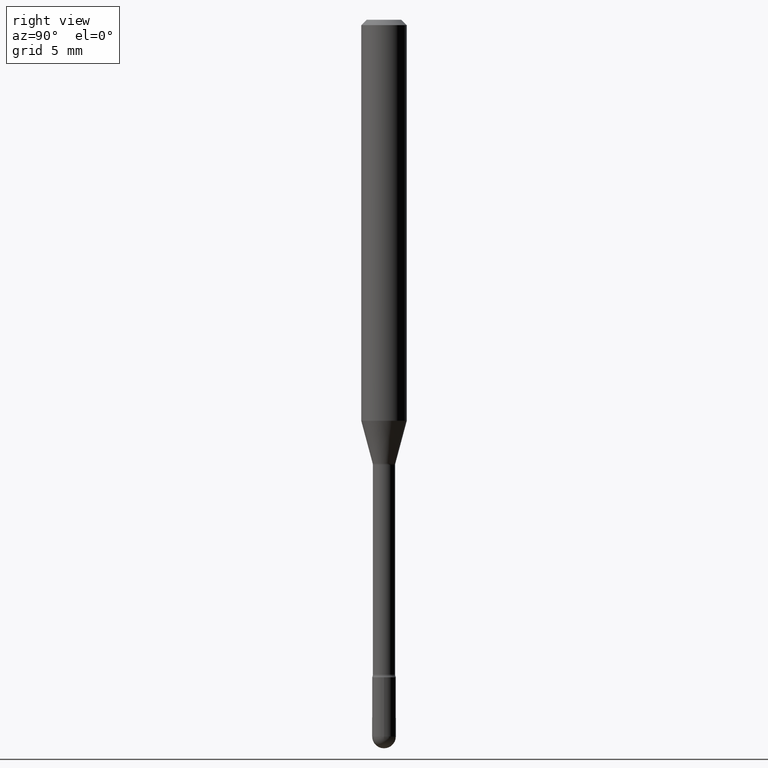
[diagram: clean part render]
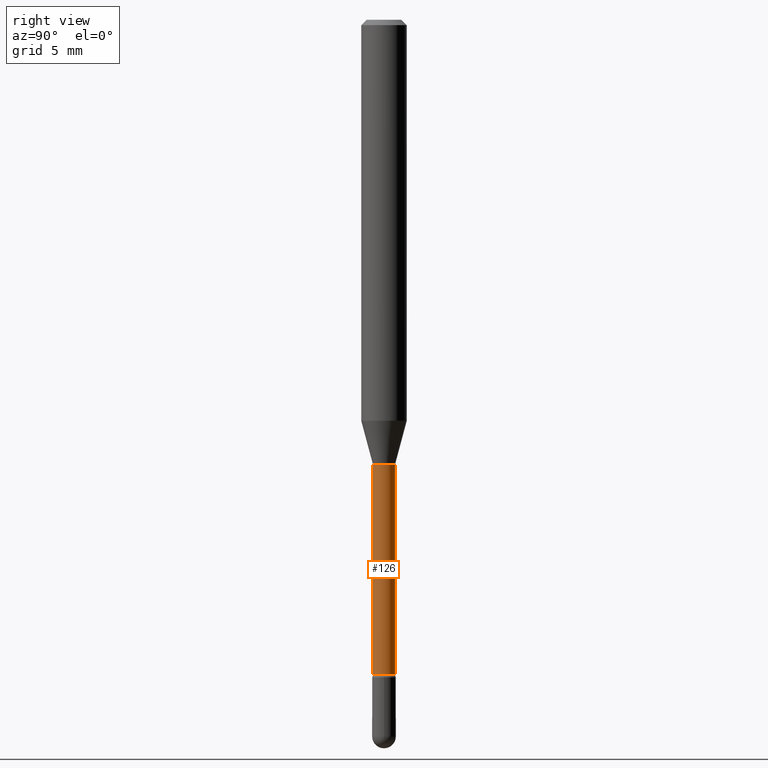
[diagram: same view with one face highlighted and labeled with its STEP entity id]
A machine part, right view. The second image highlights one B-rep face of the part: STEP entity #126.
In plain terms, the highlighted cylindrical surface (edge-blend (fillet) strip) has radius 0.776 mm, axis along (-0, 0, 1).
Its self-contained STEP definition (entity closure, byte-faithful):
#5 = VERTEX_POINT ( 'NONE', #318 ) ;
#54 = CARTESIAN_POINT ( 'NONE',  ( 2.170708057747105136E-16, 0.03054999999999999036, 3.714107169339444003E-16 ) ) ;
#56 = ORIENTED_EDGE ( 'NONE', *, *, #515, .F. ) ;
#61 = DIRECTION ( 'NONE',  ( -2.445516188486523811E-29, 3.491413484690726128E-15, 1.000000000000000000 ) ) ;
#65 = DIRECTION ( 'NONE',  ( -6.982962677686265133E-15, -1.000000000000000000, 4.471109645931690737E-15 ) ) ;
#76 = CARTESIAN_POINT ( 'NONE',  ( 2.170708057747546159E-16, 0.03054999999999572988, -1.221974787463810719 ) ) ;
#88 = AXIS2_PLACEMENT_3D ( 'NONE', #373, #347, #212 ) ;
#120 = VERTEX_POINT ( 'NONE', #348 ) ;
#126 = ADVANCED_FACE ( 'NONE', ( #467 ), #211, .T. ) ;
#142 = CARTESIAN_POINT ( 'NONE',  ( -2.133295098033153535E-16, -0.03054999999999999036, 5.847360808485476276E-16 ) ) ;
#164 = EDGE_CURVE ( 'NONE', #120, #5, #315, .T. ) ;
#187 = DIRECTION ( 'NONE',  ( -2.445516188486523811E-29, 3.491413484690726128E-15, 1.000000000000000000 ) ) ;
#190 = AXIS2_PLACEMENT_3D ( 'NONE', #448, #61, #65 ) ;
#211 = CYLINDRICAL_SURFACE ( 'NONE', #88, 0.03054999999999999036 ) ;
#212 = DIRECTION ( 'NONE',  ( -6.982962677686265922E-15, -1.000000000000000000, 3.491413484690724550E-15 ) ) ;
#220 = ORIENTED_EDGE ( 'NONE', *, *, #164, .T. ) ;
#274 = DIRECTION ( 'NONE',  ( -2.445516188486523811E-29, 3.491413484690726128E-15, 1.000000000000000000 ) ) ;
#276 = VERTEX_POINT ( 'NONE', #402 ) ;
#294 = EDGE_CURVE ( 'NONE', #5, #357, #356, .T. ) ;
#303 = EDGE_LOOP ( 'NONE', ( #220, #481, #554, #56 ) ) ;
#315 = CIRCLE ( 'NONE', #468, 0.03054999999999998342 ) ;
#318 = CARTESIAN_POINT ( 'NONE',  ( 2.239985974484157911E-16, 0.03054999999999370719, -1.797604224178627197 ) ) ;
#347 = DIRECTION ( 'NONE',  ( -2.445516188486523811E-29, 3.491413484690726128E-15, 1.000000000000000000 ) ) ;
#348 = CARTESIAN_POINT ( 'NONE',  ( -2.133295098032713499E-16, -0.03055000000000625618, -1.797604224178627197 ) ) ;
#356 = LINE ( 'NONE', #54, #366 ) ;
#357 = VERTEX_POINT ( 'NONE', #76 ) ;
#366 = VECTOR ( 'NONE', #274, 39.37007874015748143 ) ;
#373 = CARTESIAN_POINT ( 'NONE',  ( -1.169113584055446105E-44, 1.669184350826100908E-30, 4.780733988912460139E-16 ) ) ;
#377 = DIRECTION ( 'NONE',  ( -2.445516188486523811E-29, 3.491413484690726128E-15, 1.000000000000000000 ) ) ;
#402 = CARTESIAN_POINT ( 'NONE',  ( -2.133295098032855247E-16, -0.03055000000000426819, -1.221974787463810497 ) ) ;
#434 = VECTOR ( 'NONE', #187, 39.37007874015748143 ) ;
#448 = CARTESIAN_POINT ( 'NONE',  ( 2.988359124665128376E-29, -4.266419250903232080E-15, -1.221974787463810497 ) ) ;
#464 = DIRECTION ( 'NONE',  ( -6.982962677686265133E-15, -1.000000000000000000, 0.000000000000000000 ) ) ;
#467 = FACE_OUTER_BOUND ( 'NONE', #303, .T. ) ;
#468 = AXIS2_PLACEMENT_3D ( 'NONE', #470, #377, #464 ) ;
#470 = CARTESIAN_POINT ( 'NONE',  ( 4.396070230720590847E-29, -6.276179628434269096E-15, -1.797604224178627197 ) ) ;
#481 = ORIENTED_EDGE ( 'NONE', *, *, #294, .T. ) ;
#513 = CIRCLE ( 'NONE', #190, 0.03055000000000000077 ) ;
#515 = EDGE_CURVE ( 'NONE', #120, #276, #537, .T. ) ;
#519 = EDGE_CURVE ( 'NONE', #276, #357, #513, .T. ) ;
#537 = LINE ( 'NONE', #142, #434 ) ;
#554 = ORIENTED_EDGE ( 'NONE', *, *, #519, .F. ) ;